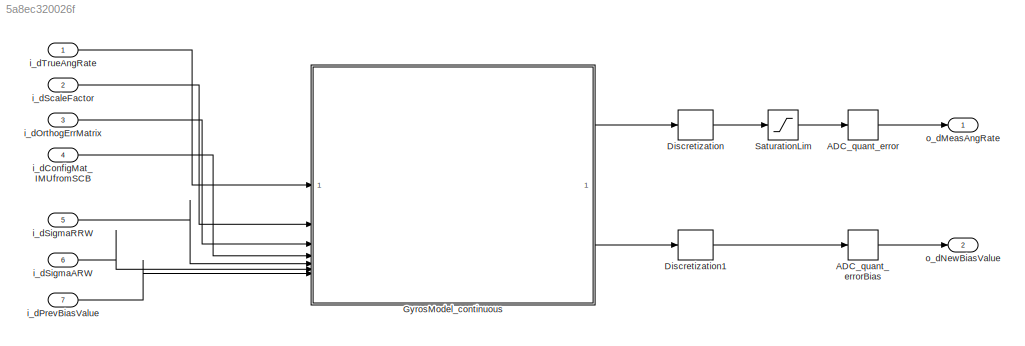
MODEL slx_5a8ec320026f
KIND model
CONFIG AbsTol = auto
CONFIG EnableMultiTasking = on
CONFIG FixedStep = 0.001
CONFIG MaxStep = auto
CONFIG MinStep = auto
CONFIG RelTol = 1e-3
CONFIG SampleTimeConstraint = Unconstrained
CONFIG SolverName = FixedStepDiscrete
CONFIG StartTime = 0.0
CONFIG StopTime = 10
BLOCK [Quantizer] ADC_quant_error
  QuantizationInterval = QuantizationInterval
BLOCK [Quantizer] ADC_quant_errorBias
  QuantizationInterval = QuantizationInterval
BLOCK [ZeroOrderHold] Discretization
  SampleTime = dSamplingTime
BLOCK [ZeroOrderHold] Discretization1
  SampleTime = dSamplingTime
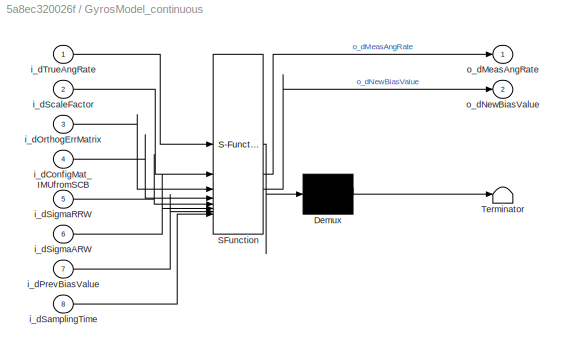
BLOCK [SubSystem] GyrosModel_continuous
  ErrorFcn = Stateflow.Translate.translate
  PermitHierarchicalResolution = ExplicitOnly
  SFBlockType = MATLAB Function
  TreatAsAtomicUnit = on
BLOCK [Demux] GyrosModel_continuous/ Demux 
  Outputs = 1
BLOCK [S-Function] GyrosModel_continuous/ SFunction 
  EnableBusSupport = off
  FunctionName = sf_sfun
  PortCounts = [8 3]
  SFcnIsStateOwnerBlock = off
  SFunctionDeploymentMode = off
  Tag = Stateflow S-Function 2
BLOCK [Terminator] GyrosModel_continuous/ Terminator 
BLOCK [Inport] GyrosModel_continuous/i_dConfigMat_IMUfromSCB
  Port = 4
BLOCK [Inport] GyrosModel_continuous/i_dOrthogErrMatrix
  Port = 3
BLOCK [Inport] GyrosModel_continuous/i_dPrevBiasValue
  Port = 7
BLOCK [Inport] GyrosModel_continuous/i_dSamplingTime
  Port = 8
BLOCK [Inport] GyrosModel_continuous/i_dScaleFactor
  Port = 2
BLOCK [Inport] GyrosModel_continuous/i_dSigmaARW
  Port = 6
BLOCK [Inport] GyrosModel_continuous/i_dSigmaRRW
  Port = 5
BLOCK [Inport] GyrosModel_continuous/i_dTrueAngRate
BLOCK [Outport] GyrosModel_continuous/o_dMeasAngRate
BLOCK [Outport] GyrosModel_continuous/o_dNewBiasValue
  Port = 2
BLOCK [Saturate] SaturationLim
  LinearizeAsGain = off
  LowerLimit = -dMaxReadingValue
  UpperLimit = dMaxReadingValue
BLOCK [Inport] i_dConfigMat_IMUfromSCB
  OutDataTypeStr = double
  Port = 4
  PortDimensions = [3,3]
  SignalType = real
  VarSizeSig = No
BLOCK [Inport] i_dOrthogErrMatrix
  OutDataTypeStr = double
  Port = 3
  PortDimensions = [3,3]
  SignalType = real
  VarSizeSig = No
BLOCK [Inport] i_dPrevBiasValue
  OutDataTypeStr = double
  Port = 7
  PortDimensions = [3,1]
  SignalType = real
  VarSizeSig = No
BLOCK [Inport] i_dScaleFactor
  OutDataTypeStr = double
  Port = 2
  PortDimensions = [3,1]
  SignalType = real
  VarSizeSig = No
BLOCK [Inport] i_dSigmaARW
  OutDataTypeStr = double
  Port = 6
  PortDimensions = [1,1]
  SignalType = real
  VarSizeSig = No
BLOCK [Inport] i_dSigmaRRW
  OutDataTypeStr = double
  Port = 5
  PortDimensions = [1,1]
  SignalType = real
  VarSizeSig = No
BLOCK [Inport] i_dTrueAngRate
  OutDataTypeStr = double
  PortDimensions = [3,1]
  SignalType = real
  VarSizeSig = No
BLOCK [Outport] o_dMeasAngRate
  OutDataTypeStr = double
  PortDimensions = [3,1]
  SignalType = real
  VarSizeSig = No
BLOCK [Outport] o_dNewBiasValue
  OutDataTypeStr = double
  Port = 2
  PortDimensions = [3,1]
  SignalType = real
  VarSizeSig = No
LINE ADC_quant_error:1 -> o_dMeasAngRate:1
LINE ADC_quant_errorBias:1 -> o_dNewBiasValue:1
LINE Discretization1:1 -> ADC_quant_errorBias:1
LINE Discretization:1 -> SaturationLim:1
LINE GyrosModel_continuous:1 -> Discretization:1
LINE GyrosModel_continuous:2 -> Discretization1:1
LINE SaturationLim:1 -> ADC_quant_error:1
LINE i_dConfigMat_IMUfromSCB:1 -> GyrosModel_continuous:4
LINE i_dOrthogErrMatrix:1 -> GyrosModel_continuous:3
LINE i_dPrevBiasValue:1 -> GyrosModel_continuous:7
LINE i_dScaleFactor:1 -> GyrosModel_continuous:2
LINE i_dSigmaARW:1 -> GyrosModel_continuous:6
LINE i_dSigmaRRW:1 -> GyrosModel_continuous:5
LINE i_dTrueAngRate:1 -> GyrosModel_continuous:1
CHART GyrosModel_continuous states=1 transitions=1
  STATE_LABEL 'eML_blk_kernel()'
  STATE_LABEL 'SCRIPT:\nfunction [o_dMeasAngRate, o_dNewBiasValue] = GyrosModel_caller( i_dTrueAngRate, ...\n    i_dScaleFactor          , ...\n    i_dOrthogErrMatrix      , ...\n    i_dConfigMat_IMUfromSCB , ...\n    i_dSigmaRRW             , ...\n    i_dSigmaARW             , ...\n    i_dPrevBiasValue        ,...\n    i_dSamplingTime         ) %#codegen\n\narguments\n    i_dTrueAngRate          (3,1) double    \n    i_dSc...<+557ch>'
CHART  states=0 transitions=0
